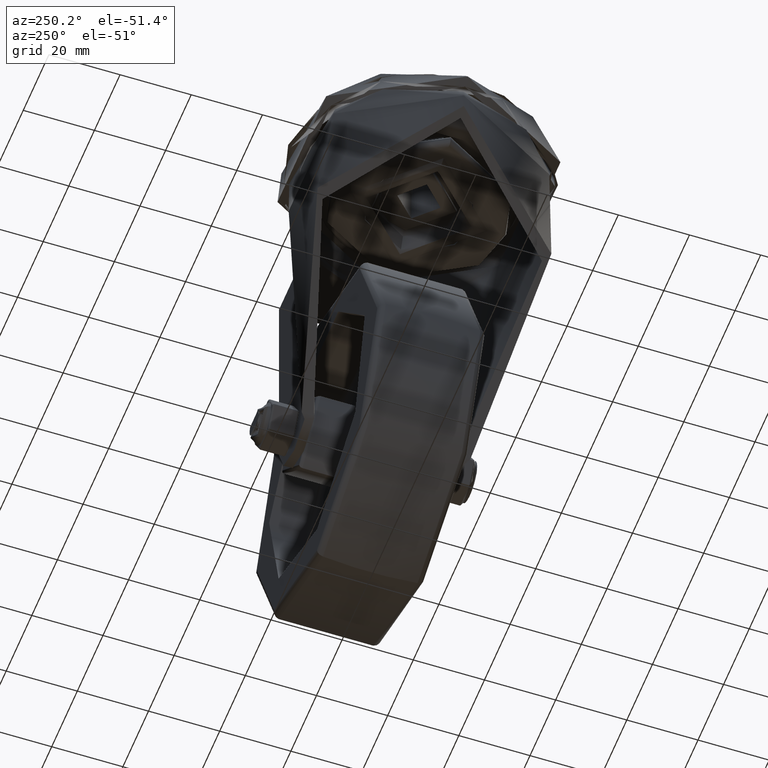
[diagram: clean part render]
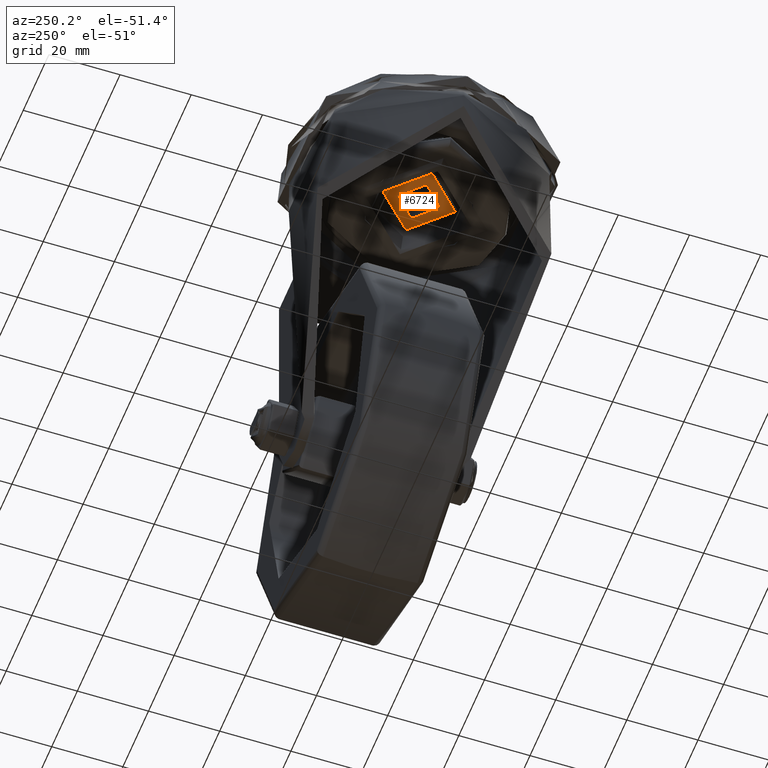
[diagram: same view with one face highlighted and labeled with its STEP entity id]
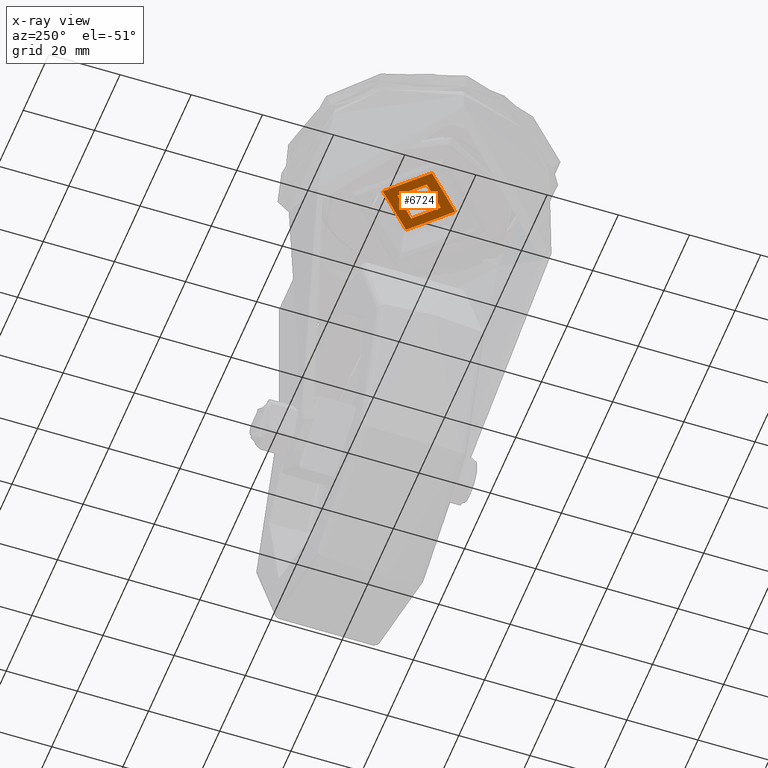
[diagram: x-ray of the same camera — body ghosted, the highlighted face saturated]
A machine part, auxiliary view. The second image highlights one B-rep face of the part: STEP entity #6724.
The next image is the same camera in x-ray: the body ghosted, the highlighted face saturated — about 0% of this face is hidden behind the body in this view.
In plain terms, the highlighted planar face has unit normal (0, 0, -1).
Its self-contained STEP definition (entity closure, byte-faithful):
#423=FACE_BOUND('',#1134,.T.);
#476=PLANE('',#7342);
#708=FACE_OUTER_BOUND('',#1133,.T.);
#1133=EDGE_LOOP('',(#4662));
#1134=EDGE_LOOP('',(#4663));
#2537=CIRCLE('',#7281,10.1565594191345);
#2540=CIRCLE('',#7285,6.1);
#2888=VERTEX_POINT('',#10135);
#2890=VERTEX_POINT('',#10141);
#3530=EDGE_CURVE('',#2888,#2888,#2537,.T.);
#3534=EDGE_CURVE('',#2890,#2890,#2540,.T.);
#4662=ORIENTED_EDGE('',*,*,#3530,.T.);
#4663=ORIENTED_EDGE('',*,*,#3534,.T.);
#6724=ADVANCED_FACE('',(#708,#423),#476,.T.);
#7281=AXIS2_PLACEMENT_3D('',#10136,#8111,#8112);
#7285=AXIS2_PLACEMENT_3D('',#10143,#8120,#8121);
#7342=AXIS2_PLACEMENT_3D('',#10235,#8243,#8244);
#8111=DIRECTION('center_axis',(0.,0.,-1.));
#8112=DIRECTION('ref_axis',(1.22464679914735E-16,1.,0.));
#8120=DIRECTION('center_axis',(0.,0.,1.));
#8121=DIRECTION('ref_axis',(0.,-1.,0.));
#8243=DIRECTION('center_axis',(0.,0.,-1.));
#8244=DIRECTION('ref_axis',(0.,-1.,0.));
#10135=CARTESIAN_POINT('',(10.1565594191345,-1.2438197982993E-15,-6.25));
#10136=CARTESIAN_POINT('Origin',(0.,0.,-6.25));
#10141=CARTESIAN_POINT('',(6.1,-7.47034547479885E-16,-6.25));
#10143=CARTESIAN_POINT('Origin',(0.,0.,-6.25));
#10235=CARTESIAN_POINT('Origin',(0.,-8.37827970956725,-6.25));